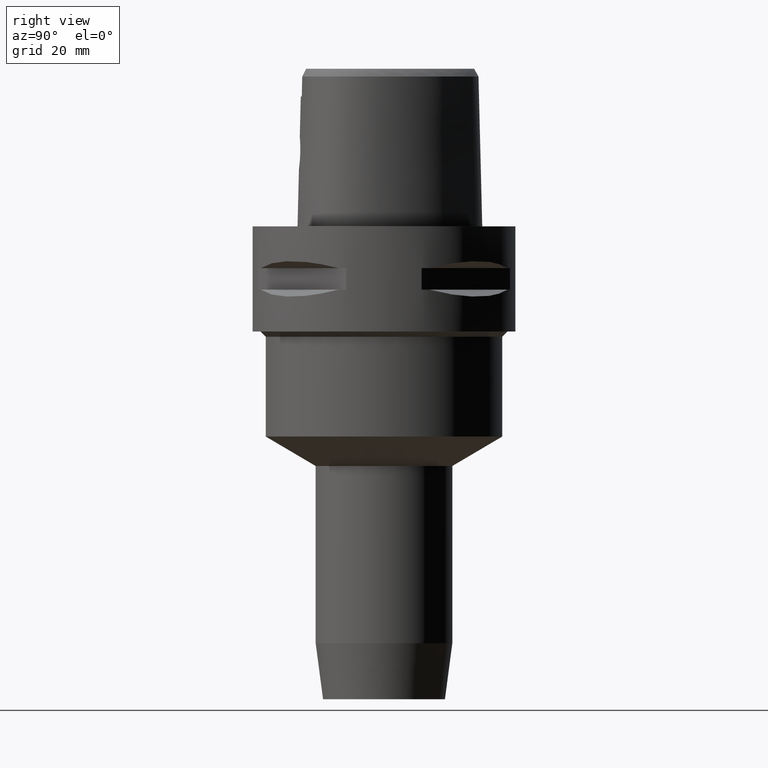
[diagram: clean part render]
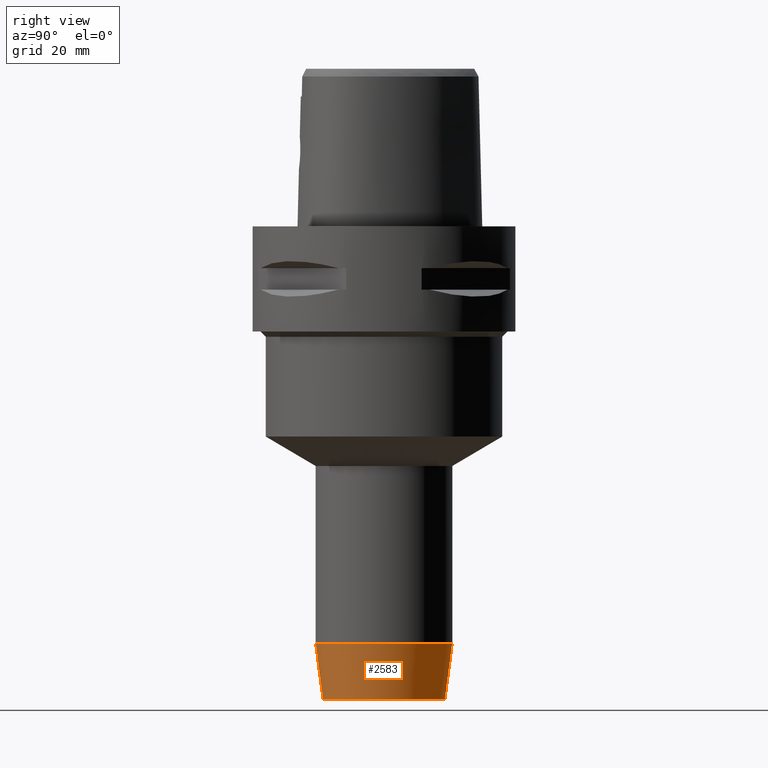
[diagram: same view with one face highlighted and labeled with its STEP entity id]
A machine part, right view. The second image highlights one B-rep face of the part: STEP entity #2583.
In plain terms, the highlighted conical surface has half-angle 7.5 deg.
Its self-contained STEP definition (entity closure, byte-faithful):
#634=DIRECTION('',(0.E0,1.305261922200E-1,-9.914448613738E-1));
#635=VECTOR('',#634,1.075646179606E1);
#636=CARTESIAN_POINT('',(0.E0,-1.3E1,-7.933556122573E1));
#637=LINE('',#636,#635);
#641=DIRECTION('',(0.E0,-1.305261922200E-1,-9.914448613738E-1));
#642=VECTOR('',#641,1.075646179606E1);
#643=CARTESIAN_POINT('',(0.E0,1.3E1,-7.933556122573E1));
#644=LINE('',#643,#642);
#648=CARTESIAN_POINT('',(0.E0,0.E0,-7.933556122573E1));
#649=DIRECTION('',(0.E0,0.E0,1.E0));
#650=DIRECTION('',(0.E0,-1.E0,0.E0));
#651=AXIS2_PLACEMENT_3D('',#648,#649,#650);
#656=CARTESIAN_POINT('',(0.E0,0.E0,-9.E1));
#657=DIRECTION('',(0.E0,0.E0,1.E0));
#658=DIRECTION('',(0.E0,-1.E0,0.E0));
#659=AXIS2_PLACEMENT_3D('',#656,#657,#658);
#1618=CARTESIAN_POINT('',(0.E0,1.3E1,-7.933556122573E1));
#1619=VERTEX_POINT('',#1618);
#1620=CARTESIAN_POINT('',(0.E0,-1.3E1,-7.933556122573E1));
#1621=VERTEX_POINT('',#1620);
#1622=CARTESIAN_POINT('',(0.E0,1.1596E1,-9.E1));
#1623=VERTEX_POINT('',#1622);
#1624=CARTESIAN_POINT('',(0.E0,-1.1596E1,-9.E1));
#1625=VERTEX_POINT('',#1624);
#2571=CARTESIAN_POINT('',(0.E0,0.E0,-8.466778061287E1));
#2572=DIRECTION('',(0.E0,0.E0,1.E0));
#2573=DIRECTION('',(0.E0,1.E0,0.E0));
#2574=AXIS2_PLACEMENT_3D('',#2571,#2572,#2573);
#2575=CONICAL_SURFACE('',#2574,1.2298E1,7.5E0);
#2576=ORIENTED_EDGE('',*,*,#2561,.T.);
#2578=ORIENTED_EDGE('',*,*,#2577,.F.);
#2579=ORIENTED_EDGE('',*,*,#2564,.F.);
#2580=ORIENTED_EDGE('',*,*,#2535,.T.);
#2581=EDGE_LOOP('',(#2576,#2578,#2579,#2580));
#2582=FACE_OUTER_BOUND('',#2581,.F.);
#652=CIRCLE('',#651,1.3E1);
#660=CIRCLE('',#659,1.1596E1);
#2535=EDGE_CURVE('',#1621,#1619,#652,.T.);
#2561=EDGE_CURVE('',#1619,#1623,#644,.T.);
#2564=EDGE_CURVE('',#1621,#1625,#637,.T.);
#2577=EDGE_CURVE('',#1625,#1623,#660,.T.);
#2583=ADVANCED_FACE('',(#2582),#2575,.T.);